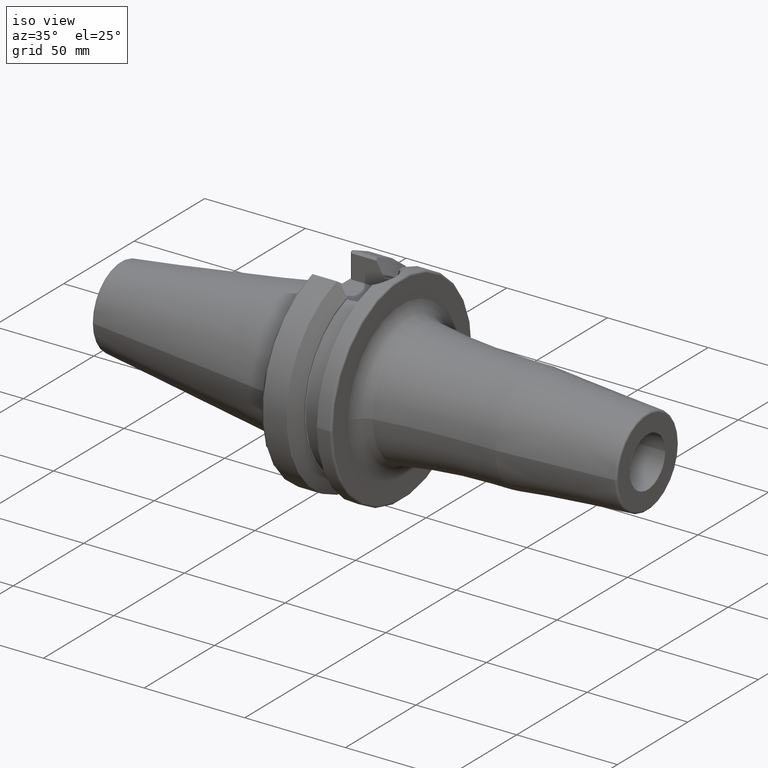
[diagram: clean part render]
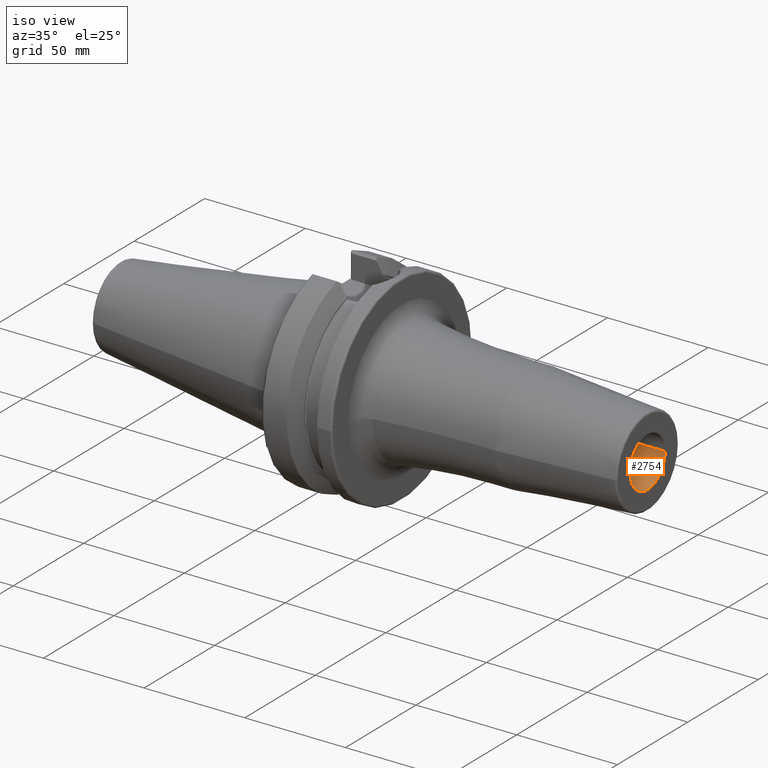
[diagram: same view with one face highlighted and labeled with its STEP entity id]
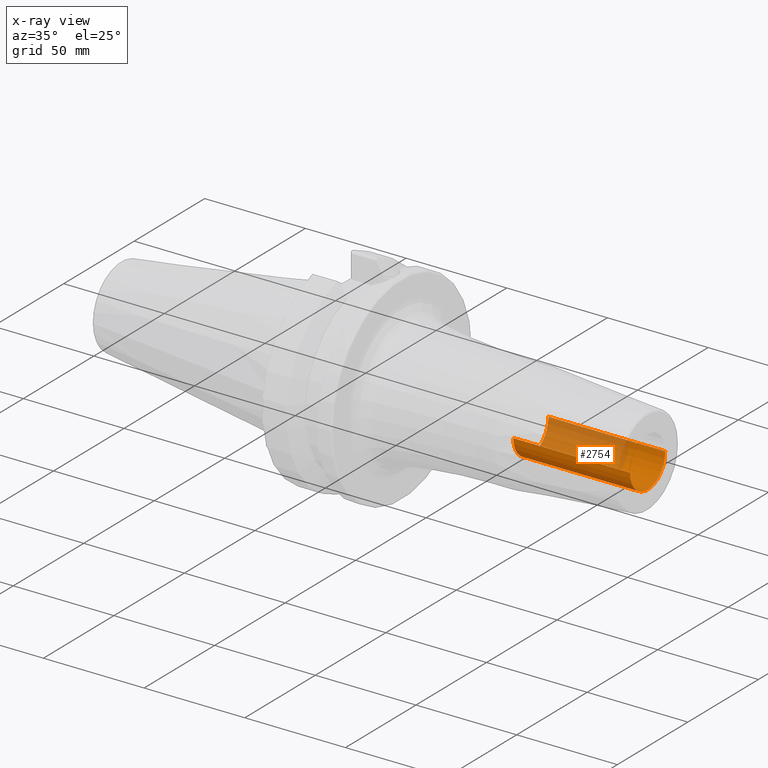
[diagram: x-ray of the same camera — body ghosted, the highlighted face saturated]
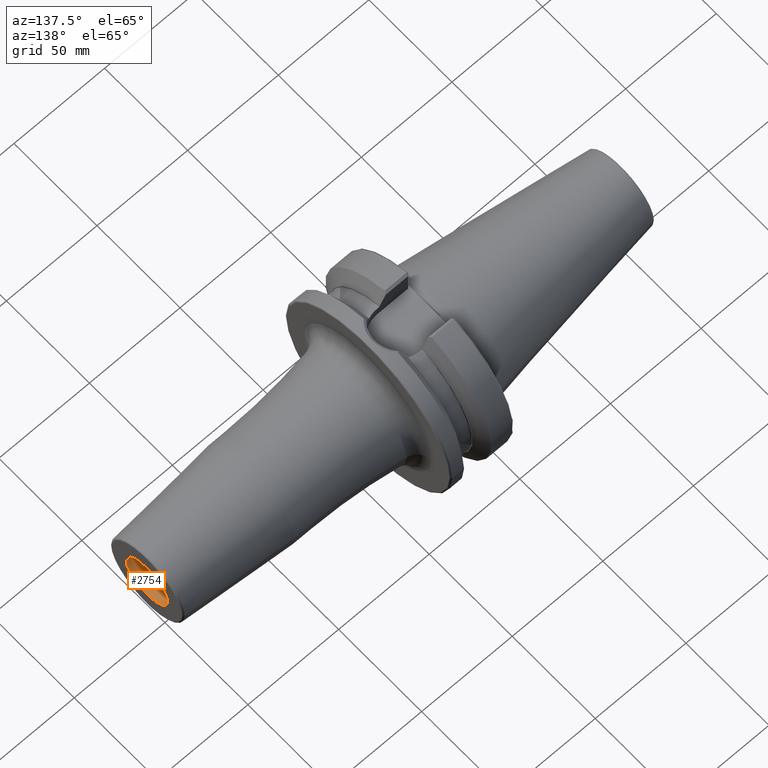
[diagram: same view with one face highlighted and labeled with its STEP entity id]
A machine part, iso view. The second image highlights one B-rep face of the part: STEP entity #2754.
The next image is the same camera in x-ray: the body ghosted, the highlighted face saturated — about 44% of this face is hidden behind the body in this view.
A second angle (auxiliary view) of the same face is appended — the face is thin or edge-on in the first view.
In plain terms, the highlighted cylindrical surface (edge-blend (fillet) strip) has radius 12.5 mm, axis along (1, 0, 0).
Its self-contained STEP definition (entity closure, byte-faithful):
#935=CARTESIAN_POINT('',(1.6E2,0.E0,0.E0));
#936=DIRECTION('',(1.E0,0.E0,0.E0));
#937=DIRECTION('',(0.E0,-1.E0,0.E0));
#938=AXIS2_PLACEMENT_3D('',#935,#936,#937);
#950=DIRECTION('',(-1.E0,0.E0,0.E0));
#951=VECTOR('',#950,5.8E1);
#952=CARTESIAN_POINT('',(1.6E2,-1.25E1,0.E0));
#953=LINE('',#952,#951);
#954=DIRECTION('',(-1.E0,0.E0,0.E0));
#955=VECTOR('',#954,5.8E1);
#956=CARTESIAN_POINT('',(1.6E2,1.25E1,0.E0));
#957=LINE('',#956,#955);
#958=CARTESIAN_POINT('',(1.02E2,0.E0,0.E0));
#959=DIRECTION('',(1.E0,0.E0,0.E0));
#960=DIRECTION('',(0.E0,-1.E0,0.E0));
#961=AXIS2_PLACEMENT_3D('',#958,#959,#960);
#1415=CARTESIAN_POINT('',(1.02E2,-1.25E1,0.E0));
#1416=CARTESIAN_POINT('',(1.02E2,1.25E1,0.E0));
#1417=VERTEX_POINT('',#1415);
#1418=VERTEX_POINT('',#1416);
#1419=CARTESIAN_POINT('',(1.6E2,1.25E1,0.E0));
#1420=CARTESIAN_POINT('',(1.6E2,-1.25E1,0.E0));
#1421=VERTEX_POINT('',#1419);
#1422=VERTEX_POINT('',#1420);
#2742=CARTESIAN_POINT('',(9.91E1,0.E0,0.E0));
#2743=DIRECTION('',(1.E0,0.E0,0.E0));
#2744=DIRECTION('',(0.E0,-1.E0,0.E0));
#2745=AXIS2_PLACEMENT_3D('',#2742,#2743,#2744);
#2746=CYLINDRICAL_SURFACE('',#2745,1.25E1);
#2747=ORIENTED_EDGE('',*,*,#2722,.F.);
#2748=ORIENTED_EDGE('',*,*,#2737,.T.);
#2750=ORIENTED_EDGE('',*,*,#2749,.T.);
#2751=ORIENTED_EDGE('',*,*,#2733,.F.);
#2752=EDGE_LOOP('',(#2747,#2748,#2750,#2751));
#2753=FACE_OUTER_BOUND('',#2752,.F.);
#2754=ADVANCED_FACE('',(#2753),#2746,.F.);
#939=CIRCLE('',#938,1.25E1);
#962=CIRCLE('',#961,1.25E1);
#2722=EDGE_CURVE('',#1422,#1421,#939,.T.);
#2733=EDGE_CURVE('',#1421,#1418,#957,.T.);
#2737=EDGE_CURVE('',#1422,#1417,#953,.T.);
#2749=EDGE_CURVE('',#1417,#1418,#962,.T.);